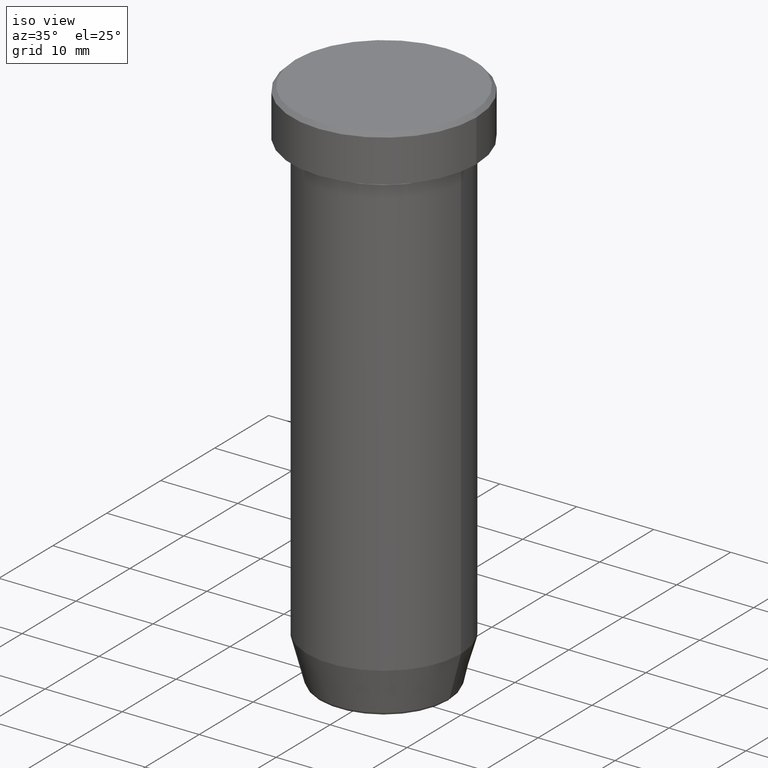
[diagram: clean part render]
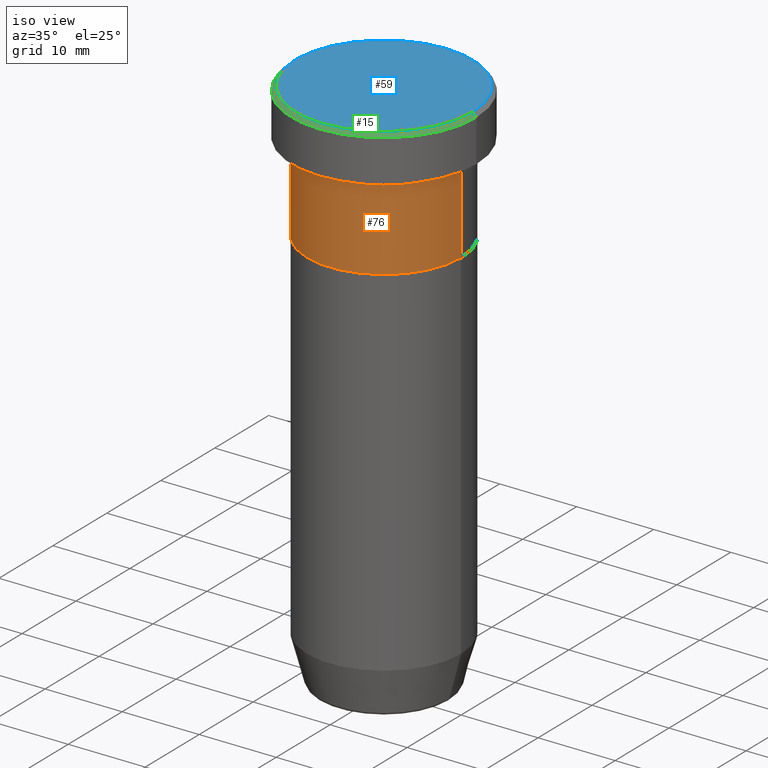
[diagram: same view with three faces highlighted in distinct colors, each labeled with its STEP entity id]
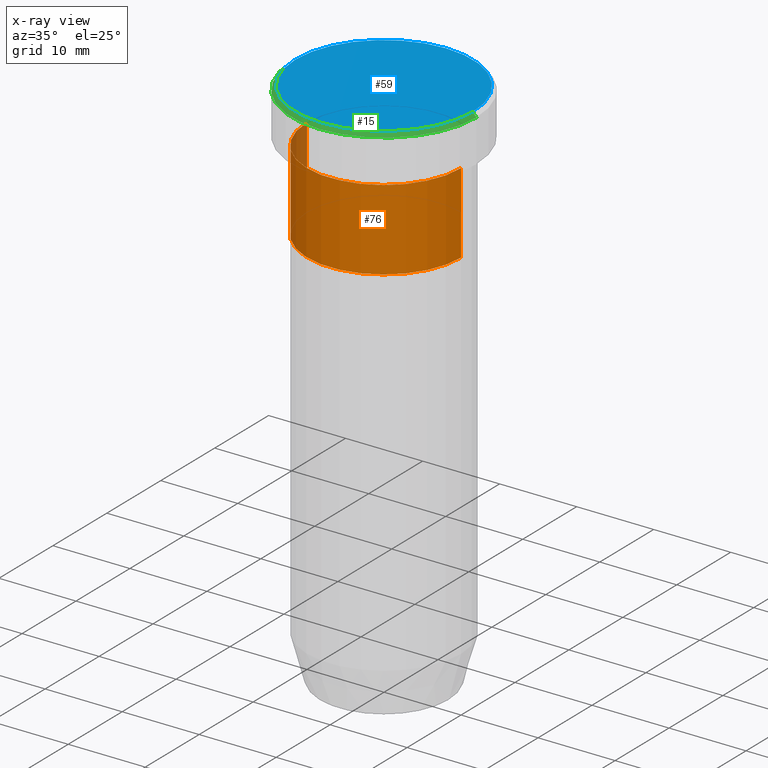
[diagram: x-ray of the same camera — body ghosted, the three highlighted faces saturated]
A machine part, iso view with three faces highlighted in distinct colors.
The next image is the same camera in x-ray (body ghosted, the three faces saturated) — at least one of them is partly hidden behind the body in this view.
Their STEP definitions:

[orange] entity #76 — the highlighted cylindrical surface (partial cylindrical patch) has radius 10 mm, axis along (-0, -0, 1).
#24 = VERTEX_POINT ( 'NONE', #272 ) ;
#47 = DIRECTION ( 'NONE',  ( -0.000000000000000000, -0.000000000000000000, 1.000000000000000000 ) ) ;
#48 = DIRECTION ( 'NONE',  ( -0.000000000000000000, -0.000000000000000000, 1.000000000000000000 ) ) ;
#73 = VERTEX_POINT ( 'NONE', #275 ) ;
#76 = ADVANCED_FACE ( 'NONE', ( #423 ), #569, .T. ) ;
#96 = DIRECTION ( 'NONE',  ( 1.000000000000000000, 0.000000000000000000, 0.000000000000000000 ) ) ;
#114 = CIRCLE ( 'NONE', #283, 10.00000000000000000 ) ;
#137 = CARTESIAN_POINT ( 'NONE',  ( 0.000000000000000000, 0.000000000000000000, 0.000000000000000000 ) ) ;
#147 = EDGE_CURVE ( 'NONE', #515, #73, #210, .T. ) ;
#151 = ORIENTED_EDGE ( 'NONE', *, *, #195, .T. ) ;
#178 = DIRECTION ( 'NONE',  ( -0.000000000000000000, -0.000000000000000000, 1.000000000000000000 ) ) ;
#195 = EDGE_CURVE ( 'NONE', #515, #243, #114, .T. ) ;
#196 = EDGE_LOOP ( 'NONE', ( #285, #151, #420, #461 ) ) ;
#207 = VECTOR ( 'NONE', #178, 1000.000000000000000 ) ;
#210 = LINE ( 'NONE', #599, #549 ) ;
#234 = DIRECTION ( 'NONE',  ( -0.000000000000000000, -0.000000000000000000, 1.000000000000000000 ) ) ;
#243 = VERTEX_POINT ( 'NONE', #458 ) ;
#271 = CARTESIAN_POINT ( 'NONE',  ( 10.00000000000000000, 0.000000000000000000, 0.000000000000000000 ) ) ;
#272 = CARTESIAN_POINT ( 'NONE',  ( 10.00000000000000000, 0.000000000000000000, -6.999999999999999112 ) ) ;
#275 = CARTESIAN_POINT ( 'NONE',  ( -10.00000000000000000, 1.224646799147353256E-15, -6.999999999999999112 ) ) ;
#283 = AXIS2_PLACEMENT_3D ( 'NONE', #533, #234, #96 ) ;
#285 = ORIENTED_EDGE ( 'NONE', *, *, #147, .F. ) ;
#291 = DIRECTION ( 'NONE',  ( 1.000000000000000000, 0.000000000000000000, 0.000000000000000000 ) ) ;
#307 = EDGE_CURVE ( 'NONE', #243, #24, #525, .T. ) ;
#334 = AXIS2_PLACEMENT_3D ( 'NONE', #476, #47, #291 ) ;
#387 = CARTESIAN_POINT ( 'NONE',  ( -10.00000000000000000, 1.224646799147353256E-15, -17.50000000000000000 ) ) ;
#420 = ORIENTED_EDGE ( 'NONE', *, *, #307, .T. ) ;
#423 = FACE_OUTER_BOUND ( 'NONE', #196, .T. ) ;
#445 = EDGE_CURVE ( 'NONE', #73, #24, #581, .T. ) ;
#458 = CARTESIAN_POINT ( 'NONE',  ( 10.00000000000000000, 0.000000000000000000, -17.50000000000000000 ) ) ;
#461 = ORIENTED_EDGE ( 'NONE', *, *, #445, .F. ) ;
#476 = CARTESIAN_POINT ( 'NONE',  ( 0.000000000000000000, 0.000000000000000000, -6.999999999999999112 ) ) ;
#481 = DIRECTION ( 'NONE',  ( 1.000000000000000000, 0.000000000000000000, 0.000000000000000000 ) ) ;
#493 = AXIS2_PLACEMENT_3D ( 'NONE', #137, #48, #481 ) ;
#515 = VERTEX_POINT ( 'NONE', #387 ) ;
#525 = LINE ( 'NONE', #271, #207 ) ;
#533 = CARTESIAN_POINT ( 'NONE',  ( 0.000000000000000000, 0.000000000000000000, -17.50000000000000000 ) ) ;
#549 = VECTOR ( 'NONE', #562, 1000.000000000000000 ) ;
#562 = DIRECTION ( 'NONE',  ( -0.000000000000000000, -0.000000000000000000, 1.000000000000000000 ) ) ;
#569 = CYLINDRICAL_SURFACE ( 'NONE', #493, 10.00000000000000000 ) ;
#581 = CIRCLE ( 'NONE', #334, 10.00000000000000000 ) ;
#599 = CARTESIAN_POINT ( 'NONE',  ( -10.00000000000000000, 1.224646799147353256E-15, 0.000000000000000000 ) ) ;

[blue] entity #59 — the highlighted planar face has unit normal (0, -0, 1).
#33 = AXIS2_PLACEMENT_3D ( 'NONE', #313, #464, #472 ) ;
#41 = EDGE_CURVE ( 'NONE', #509, #353, #554, .T. ) ;
#55 = DIRECTION ( 'NONE',  ( -0.000000000000000000, -0.000000000000000000, 1.000000000000000000 ) ) ;
#59 = ADVANCED_FACE ( 'NONE', ( #284 ), #478, .T. ) ;
#121 = AXIS2_PLACEMENT_3D ( 'NONE', #521, #385, #419 ) ;
#154 = ORIENTED_EDGE ( 'NONE', *, *, #216, .T. ) ;
#216 = EDGE_CURVE ( 'NONE', #353, #509, #466, .T. ) ;
#219 = CARTESIAN_POINT ( 'NONE',  ( 0.000000000000000000, 0.000000000000000000, 0.000000000000000000 ) ) ;
#241 = DIRECTION ( 'NONE',  ( 1.000000000000000000, 0.000000000000000000, 0.000000000000000000 ) ) ;
#284 = FACE_OUTER_BOUND ( 'NONE', #523, .T. ) ;
#313 = CARTESIAN_POINT ( 'NONE',  ( 0.000000000000000000, 0.000000000000000000, 0.000000000000000000 ) ) ;
#353 = VERTEX_POINT ( 'NONE', #526 ) ;
#385 = DIRECTION ( 'NONE',  ( 0.000000000000000000, -0.000000000000000000, 1.000000000000000000 ) ) ;
#419 = DIRECTION ( 'NONE',  ( 1.000000000000000000, 0.000000000000000000, 0.000000000000000000 ) ) ;
#434 = AXIS2_PLACEMENT_3D ( 'NONE', #219, #55, #241 ) ;
#439 = ORIENTED_EDGE ( 'NONE', *, *, #41, .T. ) ;
#464 = DIRECTION ( 'NONE',  ( -0.000000000000000000, -0.000000000000000000, 1.000000000000000000 ) ) ;
#466 = CIRCLE ( 'NONE', #434, 11.49999999999999822 ) ;
#472 = DIRECTION ( 'NONE',  ( 1.000000000000000000, 0.000000000000000000, 0.000000000000000000 ) ) ;
#478 = PLANE ( 'NONE',  #121 ) ;
#509 = VERTEX_POINT ( 'NONE', #586 ) ;
#521 = CARTESIAN_POINT ( 'NONE',  ( 0.000000000000000000, 0.000000000000000000, 0.000000000000000000 ) ) ;
#523 = EDGE_LOOP ( 'NONE', ( #439, #154 ) ) ;
#526 = CARTESIAN_POINT ( 'NONE',  ( 11.49999999999999822, 1.438959988998139963E-15, 0.000000000000000000 ) ) ;
#554 = CIRCLE ( 'NONE', #33, 11.49999999999999822 ) ;
#586 = CARTESIAN_POINT ( 'NONE',  ( -11.49999999999999822, 0.000000000000000000, 0.000000000000000000 ) ) ;

[green] entity #15 — the highlighted conical surface has half-angle 45 deg.
#6 = LINE ( 'NONE', #239, #550 ) ;
#15 = ADVANCED_FACE ( 'NONE', ( #166 ), #254, .T. ) ;
#25 = DIRECTION ( 'NONE',  ( 1.000000000000000000, 0.000000000000000000, 0.000000000000000000 ) ) ;
#33 = AXIS2_PLACEMENT_3D ( 'NONE', #313, #464, #472 ) ;
#41 = EDGE_CURVE ( 'NONE', #509, #353, #554, .T. ) ;
#103 = EDGE_CURVE ( 'NONE', #509, #262, #237, .T. ) ;
#145 = DIRECTION ( 'NONE',  ( 0.7071067811865425767, 8.659560562354873694E-17, -0.7071067811865525687 ) ) ;
#166 = FACE_OUTER_BOUND ( 'NONE', #441, .T. ) ;
#170 = DIRECTION ( 'NONE',  ( 0.000000000000000000, 0.000000000000000000, -1.000000000000000000 ) ) ;
#181 = ORIENTED_EDGE ( 'NONE', *, *, #227, .F. ) ;
#227 = EDGE_CURVE ( 'NONE', #322, #262, #329, .T. ) ;
#229 = AXIS2_PLACEMENT_3D ( 'NONE', #452, #365, #25 ) ;
#237 = LINE ( 'NONE', #433, #541 ) ;
#239 = CARTESIAN_POINT ( 'NONE',  ( 11.49999999999999822, 1.408343819019455979E-15, 0.000000000000000000 ) ) ;
#254 = CONICAL_SURFACE ( 'NONE', #346, 11.49999999999999822, 0.7853981633974412846 ) ;
#262 = VERTEX_POINT ( 'NONE', #513 ) ;
#265 = CARTESIAN_POINT ( 'NONE',  ( 0.000000000000000000, 0.000000000000000000, 0.000000000000000000 ) ) ;
#270 = DIRECTION ( 'NONE',  ( -0.7071067811865425767, 0.000000000000000000, -0.7071067811865525687 ) ) ;
#313 = CARTESIAN_POINT ( 'NONE',  ( 0.000000000000000000, 0.000000000000000000, 0.000000000000000000 ) ) ;
#322 = VERTEX_POINT ( 'NONE', #342 ) ;
#329 = CIRCLE ( 'NONE', #229, 12.00000000000000000 ) ;
#342 = CARTESIAN_POINT ( 'NONE',  ( 12.00000000000000000, 0.000000000000000000, -0.5000000000000092149 ) ) ;
#346 = AXIS2_PLACEMENT_3D ( 'NONE', #265, #170, #366 ) ;
#350 = ORIENTED_EDGE ( 'NONE', *, *, #41, .F. ) ;
#353 = VERTEX_POINT ( 'NONE', #526 ) ;
#362 = ORIENTED_EDGE ( 'NONE', *, *, #103, .T. ) ;
#365 = DIRECTION ( 'NONE',  ( 0.000000000000000000, 0.000000000000000000, -1.000000000000000000 ) ) ;
#366 = DIRECTION ( 'NONE',  ( -1.000000000000000000, 0.000000000000000000, 0.000000000000000000 ) ) ;
#375 = EDGE_CURVE ( 'NONE', #353, #322, #6, .T. ) ;
#433 = CARTESIAN_POINT ( 'NONE',  ( -11.49999999999999822, 0.000000000000000000, 0.000000000000000000 ) ) ;
#441 = EDGE_LOOP ( 'NONE', ( #467, #350, #362, #181 ) ) ;
#452 = CARTESIAN_POINT ( 'NONE',  ( 0.000000000000000000, 0.000000000000000000, -0.5000000000000092149 ) ) ;
#464 = DIRECTION ( 'NONE',  ( -0.000000000000000000, -0.000000000000000000, 1.000000000000000000 ) ) ;
#467 = ORIENTED_EDGE ( 'NONE', *, *, #375, .F. ) ;
#472 = DIRECTION ( 'NONE',  ( 1.000000000000000000, 0.000000000000000000, 0.000000000000000000 ) ) ;
#509 = VERTEX_POINT ( 'NONE', #586 ) ;
#513 = CARTESIAN_POINT ( 'NONE',  ( -12.00000000000000000, 1.469576158976823947E-15, -0.5000000000000092149 ) ) ;
#526 = CARTESIAN_POINT ( 'NONE',  ( 11.49999999999999822, 1.438959988998139963E-15, 0.000000000000000000 ) ) ;
#541 = VECTOR ( 'NONE', #270, 999.9999999999998863 ) ;
#550 = VECTOR ( 'NONE', #145, 999.9999999999998863 ) ;
#554 = CIRCLE ( 'NONE', #33, 11.49999999999999822 ) ;
#586 = CARTESIAN_POINT ( 'NONE',  ( -11.49999999999999822, 0.000000000000000000, 0.000000000000000000 ) ) ;